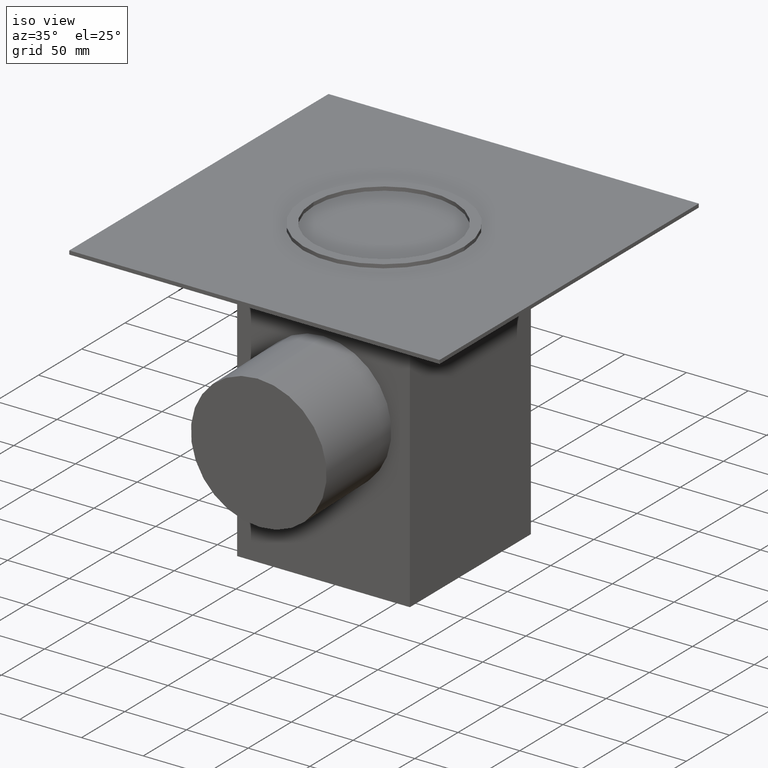
[diagram: clean part render]
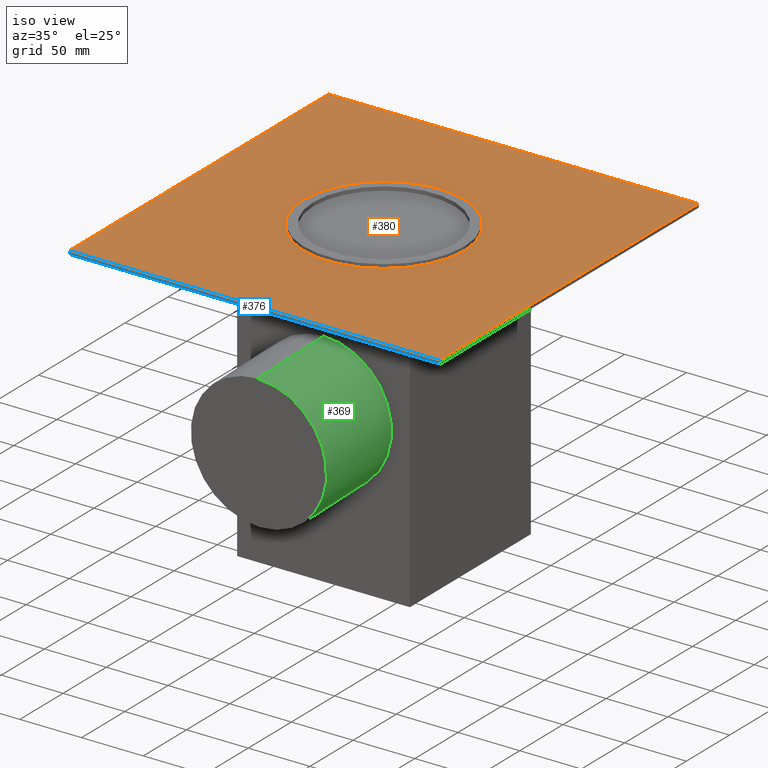
[diagram: same view with three faces highlighted in distinct colors, each labeled with its STEP entity id]
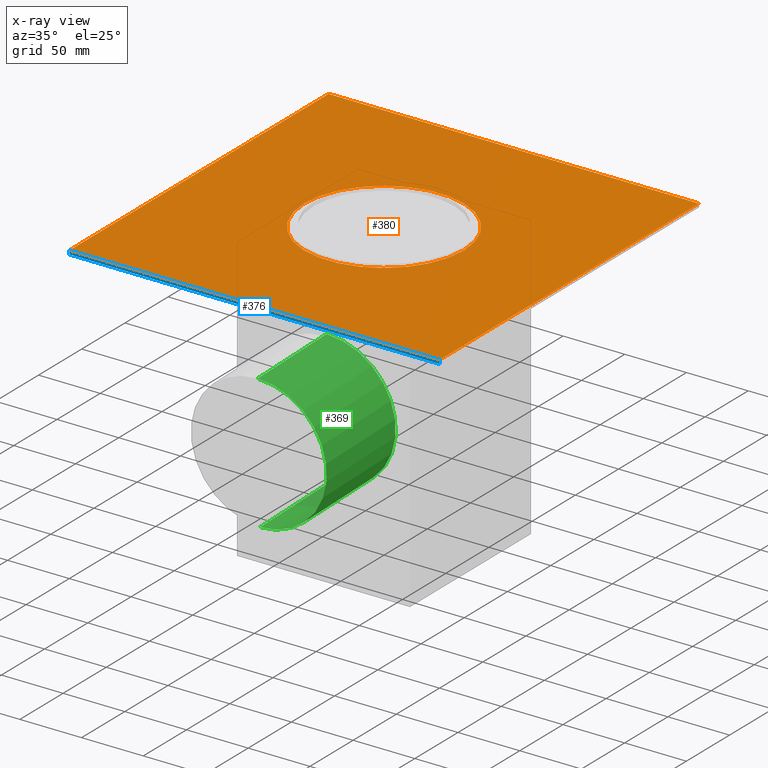
[diagram: x-ray of the same camera — body ghosted, the three highlighted faces saturated]
A machine part, iso view with three faces highlighted in distinct colors.
The next image is the same camera in x-ray (body ghosted, the three faces saturated) — at least one of them is partly hidden behind the body in this view.
Their STEP definitions:

[orange] entity #380 — the highlighted planar face has unit normal (0, 0, 1).
#24=FACE_BOUND('',#92,.T.);
#40=PLANE('',#443);
#64=FACE_OUTER_BOUND('',#91,.T.);
#91=EDGE_LOOP('',(#343,#344,#345,#346));
#92=EDGE_LOOP('',(#347,#348));
#113=LINE('',#640,#145);
#117=LINE('',#648,#149);
#120=LINE('',#654,#152);
#123=LINE('',#659,#155);
#145=VECTOR('',#536,304.8);
#149=VECTOR('',#542,304.8);
#152=VECTOR('',#547,304.8);
#155=VECTOR('',#552,304.8);
#169=CIRCLE('',#433,64.5);
#171=CIRCLE('',#436,64.5);
#193=VERTEX_POINT('',#626);
#194=VERTEX_POINT('',#627);
#197=VERTEX_POINT('',#638);
#198=VERTEX_POINT('',#639);
#201=VERTEX_POINT('',#647);
#203=VERTEX_POINT('',#653);
#235=EDGE_CURVE('',#193,#194,#169,.T.);
#239=EDGE_CURVE('',#194,#193,#171,.T.);
#241=EDGE_CURVE('',#197,#198,#113,.T.);
#245=EDGE_CURVE('',#201,#197,#117,.T.);
#248=EDGE_CURVE('',#203,#201,#120,.T.);
#251=EDGE_CURVE('',#198,#203,#123,.T.);
#343=ORIENTED_EDGE('',*,*,#251,.T.);
#344=ORIENTED_EDGE('',*,*,#248,.T.);
#345=ORIENTED_EDGE('',*,*,#245,.T.);
#346=ORIENTED_EDGE('',*,*,#241,.T.);
#347=ORIENTED_EDGE('',*,*,#239,.T.);
#348=ORIENTED_EDGE('',*,*,#235,.T.);
#380=ADVANCED_FACE('',(#64,#24),#40,.T.);
#433=AXIS2_PLACEMENT_3D('',#628,#522,#523);
#436=AXIS2_PLACEMENT_3D('',#635,#530,#531);
#443=AXIS2_PLACEMENT_3D('',#662,#556,#557);
#522=DIRECTION('center_axis',(0.,0.,-1.));
#523=DIRECTION('ref_axis',(1.,1.61554457443259E-15,0.));
#530=DIRECTION('center_axis',(0.,0.,-1.));
#531=DIRECTION('ref_axis',(1.,1.61554457443259E-15,0.));
#536=DIRECTION('',(0.,1.,0.));
#542=DIRECTION('',(1.,0.,0.));
#547=DIRECTION('',(5.63993296509578E-17,-1.,0.));
#552=DIRECTION('',(-1.,0.,0.));
#556=DIRECTION('center_axis',(0.,0.,1.));
#557=DIRECTION('ref_axis',(-1.,0.,0.));
#626=CARTESIAN_POINT('',(64.5,5.58353363544484E-13,3.00000000000016));
#627=CARTESIAN_POINT('',(-64.5,-1.69197988952874E-14,3.00000000000016));
#628=CARTESIAN_POINT('Origin',(0.,9.03800409857782E-14,3.00000000000016));
#635=CARTESIAN_POINT('Origin',(0.,9.03800409857782E-14,3.00000000000016));
#638=CARTESIAN_POINT('',(150.,-150.,3.00000000000016));
#639=CARTESIAN_POINT('',(150.,150.,3.00000000000016));
#640=CARTESIAN_POINT('',(150.,-150.,3.00000000000016));
#647=CARTESIAN_POINT('',(-150.,-150.,3.00000000000016));
#648=CARTESIAN_POINT('',(-150.,-150.,3.00000000000016));
#653=CARTESIAN_POINT('',(-150.,150.,3.00000000000016));
#654=CARTESIAN_POINT('',(-150.,150.,3.00000000000016));
#659=CARTESIAN_POINT('',(150.,150.,3.00000000000016));
#662=CARTESIAN_POINT('Origin',(-150.,150.,3.00000000000016));

[blue] entity #376 — the highlighted planar face has unit normal (0, -1, 0).
#36=PLANE('',#439);
#60=FACE_OUTER_BOUND('',#86,.T.);
#86=EDGE_LOOP('',(#325,#326,#327,#328));
#114=LINE('',#642,#146);
#117=LINE('',#648,#149);
#118=LINE('',#650,#150);
#119=LINE('',#651,#151);
#146=VECTOR('',#537,304.8);
#149=VECTOR('',#542,304.8);
#150=VECTOR('',#543,304.8);
#151=VECTOR('',#544,304.8);
#197=VERTEX_POINT('',#638);
#199=VERTEX_POINT('',#641);
#201=VERTEX_POINT('',#647);
#202=VERTEX_POINT('',#649);
#242=EDGE_CURVE('',#199,#197,#114,.T.);
#245=EDGE_CURVE('',#201,#197,#117,.T.);
#246=EDGE_CURVE('',#202,#201,#118,.T.);
#247=EDGE_CURVE('',#199,#202,#119,.T.);
#325=ORIENTED_EDGE('',*,*,#245,.F.);
#326=ORIENTED_EDGE('',*,*,#246,.F.);
#327=ORIENTED_EDGE('',*,*,#247,.F.);
#328=ORIENTED_EDGE('',*,*,#242,.T.);
#376=ADVANCED_FACE('',(#60),#36,.T.);
#439=AXIS2_PLACEMENT_3D('',#646,#540,#541);
#537=DIRECTION('',(0.,0.,1.));
#540=DIRECTION('center_axis',(0.,-1.,0.));
#541=DIRECTION('ref_axis',(0.,0.,-1.));
#542=DIRECTION('',(1.,0.,0.));
#543=DIRECTION('',(0.,0.,1.));
#544=DIRECTION('',(-1.,0.,0.));
#638=CARTESIAN_POINT('',(150.,-150.,3.00000000000016));
#641=CARTESIAN_POINT('',(150.,-150.,0.));
#642=CARTESIAN_POINT('',(150.,-150.,0.));
#646=CARTESIAN_POINT('Origin',(-150.,-150.,3.00000000000016));
#647=CARTESIAN_POINT('',(-150.,-150.,3.00000000000016));
#648=CARTESIAN_POINT('',(-150.,-150.,3.00000000000016));
#649=CARTESIAN_POINT('',(-150.,-150.,0.));
#650=CARTESIAN_POINT('',(-150.,-150.,0.));
#651=CARTESIAN_POINT('',(150.,-150.,0.));

[green] entity #369 — the highlighted cylindrical surface (partial cylindrical patch) has radius 55 mm, axis along (0, 0.9997, 0.0262).
#53=FACE_OUTER_BOUND('',#79,.T.);
#79=EDGE_LOOP('',(#301,#302,#303,#304));
#109=LINE('',#616,#141);
#110=LINE('',#619,#142);
#141=VECTOR('',#506,304.8);
#142=VECTOR('',#509,304.8);
#165=CIRCLE('',#425,55.);
#166=CIRCLE('',#426,55.);
#189=VERTEX_POINT('',#612);
#190=VERTEX_POINT('',#613);
#191=VERTEX_POINT('',#615);
#192=VERTEX_POINT('',#617);
#229=EDGE_CURVE('',#189,#190,#165,.T.);
#230=EDGE_CURVE('',#191,#189,#109,.T.);
#231=EDGE_CURVE('',#192,#191,#166,.T.);
#232=EDGE_CURVE('',#190,#192,#110,.T.);
#301=ORIENTED_EDGE('',*,*,#229,.F.);
#302=ORIENTED_EDGE('',*,*,#230,.F.);
#303=ORIENTED_EDGE('',*,*,#231,.F.);
#304=ORIENTED_EDGE('',*,*,#232,.F.);
#353=CYLINDRICAL_SURFACE('',#424,55.);
#369=ADVANCED_FACE('',(#53),#353,.T.);
#424=AXIS2_PLACEMENT_3D('',#611,#502,#503);
#425=AXIS2_PLACEMENT_3D('',#614,#504,#505);
#426=AXIS2_PLACEMENT_3D('',#618,#507,#508);
#502=DIRECTION('center_axis',(0.,0.999657324975557,0.0261769483078731));
#503=DIRECTION('ref_axis',(-1.61554457443259E-15,-0.0261769483078731,0.999657324975557));
#504=DIRECTION('center_axis',(0.,0.999657324975557,0.0261769483078731));
#505=DIRECTION('ref_axis',(-1.61554457443259E-15,-0.0261769483078731,0.999657324975557));
#506=DIRECTION('',(0.,0.999657324975557,0.0261769483078731));
#507=DIRECTION('center_axis',(0.,-0.999657324975557,-0.0261769483078731));
#508=DIRECTION('ref_axis',(-1.61554457443259E-15,-0.0261769483078731,0.999657324975557));
#509=DIRECTION('',(0.,-0.999657324975557,-0.0261769483078729));
#611=CARTESIAN_POINT('Origin',(8.88549515937923E-14,-144.945162598762,-107.094155864601));
#612=CARTESIAN_POINT('',(-3.06569993291662E-13,-66.4123087576502,-50.0188471263153));
#613=CARTESIAN_POINT('',(1.77709903187585E-13,-63.5328444437841,-159.981152873627));
#614=CARTESIAN_POINT('Origin',(8.88549515937923E-14,-64.9725766007171,-104.999999999971));
#615=CARTESIAN_POINT('',(0.,-146.384894755695,-52.1130029909452));
#616=CARTESIAN_POINT('',(-3.55419806375169E-13,-146.384894755695,-52.1130029909452));
#617=CARTESIAN_POINT('',(1.53284996645831E-13,-143.505430441829,-162.075308738256));
#618=CARTESIAN_POINT('Origin',(8.88549515937923E-14,-144.945162598762,-107.094155864601));
#619=CARTESIAN_POINT('',(1.53284996645831E-13,-63.5328444437841,-159.981152873627));